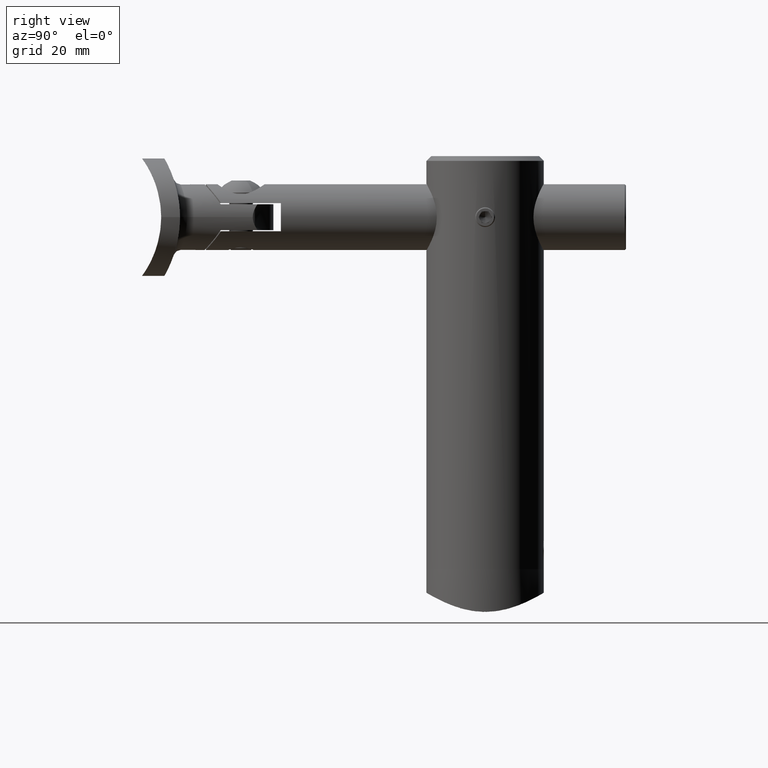
[diagram: clean part render]
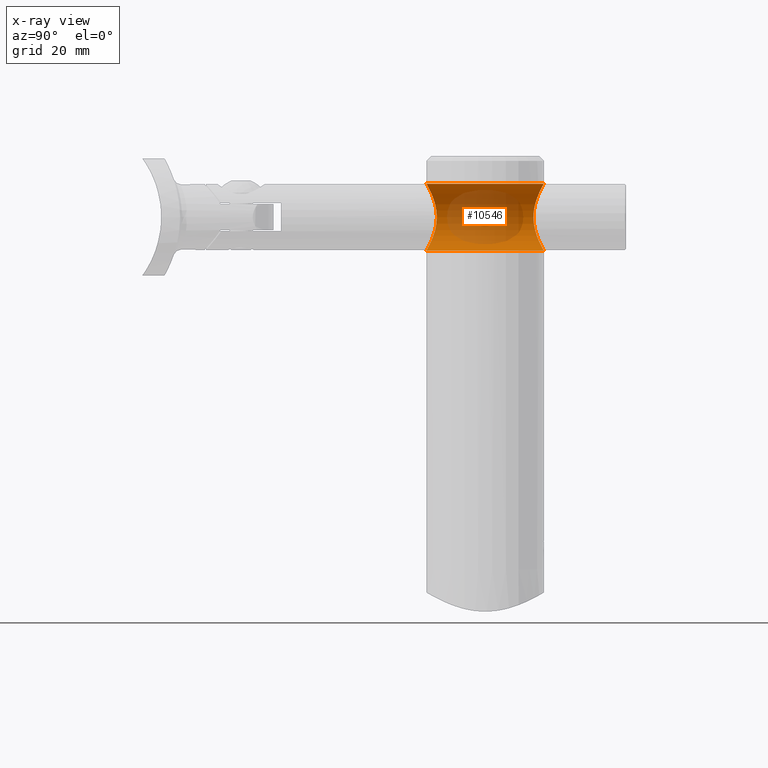
[diagram: x-ray — body ghosted, one internal face saturated and labeled with its STEP entity id]
A machine part, right view, then the same camera in x-ray: the body is ghosted and one INTERNAL B-rep face — a face not visible from any outside direction — is saturated and labeled: STEP entity #10546.
In plain terms, the highlighted cylindrical surface (edge-blend (fillet) strip) has radius 7.1 mm, axis along (0, 1, 0).
Its self-contained STEP definition (entity closure, byte-faithful):
#573 = CARTESIAN_POINT ( 'NONE',  ( -6.363243337331820904, 10.76119357562656376, 71.81699247692640142 ) ) ;
#711 = CARTESIAN_POINT ( 'NONE',  ( -7.003725121456042757, 10.35379304955138124, 73.81127548781321934 ) ) ;
#791 = CARTESIAN_POINT ( 'NONE',  ( -6.721338987096790341, 10.54124068422388660, 72.66633231102328239 ) ) ;
#935 = CARTESIAN_POINT ( 'NONE',  ( -3.597349250370595719, 11.97780161950913325, 81.13814261268854011 ) ) ;
#1596 = CARTESIAN_POINT ( 'NONE',  ( -5.766588826831744896, -11.09131400361185094, 79.14830821994482335 ) ) ;
#1783 = DIRECTION ( 'NONE',  ( -0.000000000000000000, 1.000000000000000000, -0.000000000000000000 ) ) ;
#1882 = CARTESIAN_POINT ( 'NONE',  ( -7.099863319915299620, -10.28795124725936816, 75.48272081303903747 ) ) ;
#2025 = CARTESIAN_POINT ( 'NONE',  ( -1.869096526884923559, -12.36157828789707835, 68.14638903365944600 ) ) ;
#2096 = CARTESIAN_POINT ( 'NONE',  ( -5.633085906007541332, -11.16254692090160461, 70.65396086375709217 ) ) ;
#2167 = CARTESIAN_POINT ( 'NONE',  ( -0.4799539051028682834, 12.49999999999999822, 67.90000000000000568 ) ) ;
#2237 = CARTESIAN_POINT ( 'NONE',  ( -7.087426699821466336, 10.29656404782429746, 74.51571112368853278 ) ) ;
#2311 = CARTESIAN_POINT ( 'NONE',  ( -6.715641276056542708, 10.54309940824726688, 77.31630617827102014 ) ) ;
#2382 = CARTESIAN_POINT ( 'NONE',  ( -6.019886174600849849, 10.95590503741819077, 78.77136084374127734 ) ) ;
#2456 = CARTESIAN_POINT ( 'NONE',  ( -4.699254457469035806, 11.58459427111668205, 80.32723125532280051 ) ) ;
#2562 = VERTEX_POINT ( 'NONE', #8937 ) ;
#2610 = CARTESIAN_POINT ( 'NONE',  ( -0.4811991486314993738, 12.49299174562365344, 82.08768211575331009 ) ) ;
#2753 = CARTESIAN_POINT ( 'NONE',  ( 1.310074275435993587E-16, 12.49999999999999467, 82.09999999999999432 ) ) ;
#3323 = CARTESIAN_POINT ( 'NONE',  ( -7.100136108486188924, -10.28776298659892596, 74.52130825598261765 ) ) ;
#3402 = CARTESIAN_POINT ( 'NONE',  ( -6.136548808116675247, -10.89076193942645965, 71.42150636865642355 ) ) ;
#3698 = CARTESIAN_POINT ( 'NONE',  ( -0.4809610958689493065, -12.50000000000000711, 67.89999999999999147 ) ) ;
#3750 = EDGE_LOOP ( 'NONE', ( #4633, #15842, #19858, #14291 ) ) ;
#3829 = CARTESIAN_POINT ( 'NONE',  ( 1.530808498934021719E-15, -12.50000000000000711, 67.90000000000000568 ) ) ;
#3971 = CARTESIAN_POINT ( 'NONE',  ( -6.457309689604062264, 10.70346527864367481, 77.96083301754556771 ) ) ;
#4003 = DIRECTION ( 'NONE',  ( -0.000000000000000000, 1.000000000000000000, -0.000000000000000000 ) ) ;
#4186 = CARTESIAN_POINT ( 'NONE',  ( -0.2397798003476031004, 12.50000000000000000, 82.10000000000002274 ) ) ;
#4256 = CARTESIAN_POINT ( 'NONE',  ( -2.327268730588588852, 12.28355408712934960, 81.71186112651896849 ) ) ;
#4319 = CARTESIAN_POINT ( 'NONE',  ( -1.878213508060260439, 12.36018587133492552, 81.85110017035161434 ) ) ;
#4633 = ORIENTED_EDGE ( 'NONE', *, *, #14865, .T. ) ;
#4852 = CARTESIAN_POINT ( 'NONE',  ( 1.290313625304569330E-16, -12.50000000000000888, 82.09999999999999432 ) ) ;
#4854 = CYLINDRICAL_SURFACE ( 'NONE', #14720, 7.099999999999995204 ) ;
#5236 = CARTESIAN_POINT ( 'NONE',  ( -2.319323625872138361, -12.28506725716603754, 68.28537096905358794 ) ) ;
#5510 = CARTESIAN_POINT ( 'NONE',  ( -3.186329035902472295, -12.09508519001900240, 68.63805128578243853 ) ) ;
#5653 = CARTESIAN_POINT ( 'NONE',  ( -3.187016512190915307, 12.09486426576824591, 68.63847765149670010 ) ) ;
#5727 = CARTESIAN_POINT ( 'NONE',  ( -6.853982002503376414, 10.45369377733144312, 76.86763025503729807 ) ) ;
#5800 = CARTESIAN_POINT ( 'NONE',  ( -0.9553685758214900403, 12.46569958972207814, 82.03946455910859470 ) ) ;
#6521 = CARTESIAN_POINT ( 'NONE',  ( -0.9512168273055808809, -12.47240342699864257, 82.05172804908774253 ) ) ;
#6590 = CARTESIAN_POINT ( 'NONE',  ( -0.4805659640073332572, -12.50000000000001066, 82.09999999999999432 ) ) ;
#6664 = CARTESIAN_POINT ( 'NONE',  ( -3.592029824636711055, -11.97955674781281488, 81.14166018535316027 ) ) ;
#6709 = CARTESIAN_POINT ( 'NONE',  ( 0.000000000000000000, -12.50000000000000888, 82.09999999999999432 ) ) ;
#6733 = CARTESIAN_POINT ( 'NONE',  ( -3.187496164584713743, -12.09474588327909572, 81.36129952231799223 ) ) ;
#6931 = DIRECTION ( 'NONE',  ( -0.000000000000000000, 1.000000000000000000, -0.000000000000000000 ) ) ;
#7149 = CARTESIAN_POINT ( 'NONE',  ( -4.357488413051599174, 11.72285358696203161, 69.37543835206956544 ) ) ;
#7285 = CARTESIAN_POINT ( 'NONE',  ( -5.765905370694645704, 11.09166530797232397, 70.85077256676534319 ) ) ;
#8150 = CARTESIAN_POINT ( 'NONE',  ( -6.863499158220037089, -10.44773442666880925, 76.87726417523569467 ) ) ;
#8222 = CARTESIAN_POINT ( 'NONE',  ( -5.629205280336354811, -11.16189758074911786, 79.33288889108357012 ) ) ;
#8289 = CARTESIAN_POINT ( 'NONE',  ( -6.713868405384194382, -10.54423150536104181, 72.67849907081439653 ) ) ;
#8354 = CARTESIAN_POINT ( 'NONE',  ( -6.148078400945676592, -10.88734605281070422, 78.58038588945871084 ) ) ;
#8570 = CARTESIAN_POINT ( 'NONE',  ( -5.345048310374298950, -11.30501070537479791, 70.30460859623606495 ) ) ;
#8710 = CARTESIAN_POINT ( 'NONE',  ( -4.707102817139632300, 11.58512768093194367, 69.66537265374722665 ) ) ;
#8739 = CARTESIAN_POINT ( 'NONE',  ( 0.000000000000000000, -12.50000000000000888, 75.00000000000000000 ) ) ;
#8771 = CARTESIAN_POINT ( 'NONE',  ( -7.099833554373474520, 10.28797178943786861, 74.75572396004346842 ) ) ;
#8853 = CARTESIAN_POINT ( 'NONE',  ( 1.479114197289397135E-28, 12.49999999999999645, 67.90000000000000568 ) ) ;
#8937 = CARTESIAN_POINT ( 'NONE',  ( 1.310074275435993587E-16, 12.49999999999999467, 82.09999999999999432 ) ) ;
#9212 = EDGE_CURVE ( 'NONE', #13586, #11777, #10848, .T. ) ;
#9220 = CARTESIAN_POINT ( 'NONE',  ( -4.163804789402314910, 11.78780696279484275, 80.75540257205885553 ) ) ;
#9802 = CARTESIAN_POINT ( 'NONE',  ( -7.051980222211305716, -10.32144769786894756, 74.05050001367733614 ) ) ;
#9865 = CARTESIAN_POINT ( 'NONE',  ( -6.454712516760552354, -10.70503448327142237, 72.03349485711554223 ) ) ;
#9938 = CARTESIAN_POINT ( 'NONE',  ( -6.016811922509472055, -10.95760019053422774, 71.22370518382081173 ) ) ;
#10150 = CARTESIAN_POINT ( 'NONE',  ( -4.703273353215213781, -11.58671775153815986, 69.66188594729268857 ) ) ;
#10196 = FACE_OUTER_BOUND ( 'NONE', #3750, .T. ) ;
#10354 = CARTESIAN_POINT ( 'NONE',  ( -6.146595381488635823, 10.88816703618159565, 71.41721095202193226 ) ) ;
#10421 = CARTESIAN_POINT ( 'NONE',  ( -6.912668111617620070, 10.41480574227798783, 76.63725143042475452 ) ) ;
#10426 = LINE ( 'NONE', #6709, #19049 ) ;
#10494 = CARTESIAN_POINT ( 'NONE',  ( -5.339170464550233142, 11.30350596078846870, 70.31435362947014767 ) ) ;
#10546 = ADVANCED_FACE ( 'NONE', ( #10196 ), #4854, .F. ) ;
#10561 = CARTESIAN_POINT ( 'NONE',  ( -6.357972462635662403, 10.76299649604914954, 78.16845701976458827 ) ) ;
#10848 = LINE ( 'NONE', #18336, #17437 ) ;
#11493 = CARTESIAN_POINT ( 'NONE',  ( -6.634052515645173287, -10.59483006856256537, 72.45976110248518864 ) ) ;
#11777 = VERTEX_POINT ( 'NONE', #21030 ) ;
#11993 = CARTESIAN_POINT ( 'NONE',  ( -7.039363743819929020, 10.32948239257338408, 74.04422229401671984 ) ) ;
#12054 = EDGE_CURVE ( 'NONE', #17315, #2562, #10426, .T. ) ;
#12133 = CARTESIAN_POINT ( 'NONE',  ( -7.052734923715453519, 10.32092856185195195, 75.94404489671643432 ) ) ;
#12171 = DIRECTION ( 'NONE',  ( 0.000000000000000000, 0.000000000000000000, 1.000000000000000000 ) ) ;
#12206 = CARTESIAN_POINT ( 'NONE',  ( -4.868944799639089993, 11.51408151635097887, 80.17252493070223807 ) ) ;
#13073 = CARTESIAN_POINT ( 'NONE',  ( -5.187679897919512229, -11.37402628047062514, 79.85275722496859885 ) ) ;
#13131 = CARTESIAN_POINT ( 'NONE',  ( -6.355184909898128787, -10.76464359171548146, 71.82596901323131533 ) ) ;
#13345 = CARTESIAN_POINT ( 'NONE',  ( -1.641484044854728097, -12.39391654726005321, 68.08836762162168554 ) ) ;
#13416 = CARTESIAN_POINT ( 'NONE',  ( -3.589032839019618670, -11.98032867455220796, 68.85692947369597050 ) ) ;
#13549 = CARTESIAN_POINT ( 'NONE',  ( -4.346314444032338464, -11.72684879340800812, 69.36723664936094735 ) ) ;
#13586 = VERTEX_POINT ( 'NONE', #19156 ) ;
#13689 = CARTESIAN_POINT ( 'NONE',  ( -6.636142668883750595, 10.59351820108907916, 77.53475660832805261 ) ) ;
#13758 = CARTESIAN_POINT ( 'NONE',  ( -5.186797260141185362, 11.37442896416548521, 70.14630031359379814 ) ) ;
#13829 = CARTESIAN_POINT ( 'NONE',  ( -4.346392963122591269, 11.72154789661119878, 80.61883026206068337 ) ) ;
#14120 = CARTESIAN_POINT ( 'NONE',  ( -3.195008394635605598, 12.09282248704221097, 81.35766473062257376 ) ) ;
#14291 = ORIENTED_EDGE ( 'NONE', *, *, #12054, .F. ) ;
#14682 = CARTESIAN_POINT ( 'NONE',  ( -5.339918604441927563, -11.30314907400740942, 79.68477827955356929 ) ) ;
#14720 = AXIS2_PLACEMENT_3D ( 'NONE', #8739, #4003, #12171 ) ;
#14817 = CARTESIAN_POINT ( 'NONE',  ( -4.708029709747248326, -11.58475042720365344, 80.33381269667304991 ) ) ;
#14865 = EDGE_CURVE ( 'NONE', #17315, #13586, #20113, .T. ) ;
#15162 = CARTESIAN_POINT ( 'NONE',  ( -2.330455522349846653, 12.28868556496928122, 68.27727600612421099 ) ) ;
#15304 = CARTESIAN_POINT ( 'NONE',  ( -6.139503581357961259, 10.88909560909868901, 78.57343385222416998 ) ) ;
#15383 = CARTESIAN_POINT ( 'NONE',  ( -5.637531711305973303, 11.16027666235574323, 79.34016184945231487 ) ) ;
#15598 = CARTESIAN_POINT ( 'NONE',  ( -1.189197617727922651, 12.44547036346077462, 82.00366006475732661 ) ) ;
#15672 = CARTESIAN_POINT ( 'NONE',  ( -1.650620416519912759, 12.39271462522872191, 81.90947881661521990 ) ) ;
#15842 = ORIENTED_EDGE ( 'NONE', *, *, #9212, .T. ) ;
#16313 = CARTESIAN_POINT ( 'NONE',  ( -6.722015453373487937, -10.54080125387374345, 77.33161824979872279 ) ) ;
#16376 = CARTESIAN_POINT ( 'NONE',  ( -4.356324323330959203, -11.72326304938613184, 80.62539833997443850 ) ) ;
#16450 = CARTESIAN_POINT ( 'NONE',  ( -7.051303418075907992, -10.32191336193628217, 75.95439068768591540 ) ) ;
#16727 = CARTESIAN_POINT ( 'NONE',  ( -0.9511355239451600996, -12.47236506100288445, 67.94834280267892268 ) ) ;
#16794 = CARTESIAN_POINT ( 'NONE',  ( -3.591928364928691053, 11.97960984808971929, 68.85822097251376306 ) ) ;
#16867 = CARTESIAN_POINT ( 'NONE',  ( -1.874312031601152784, 12.36740688548126954, 68.13568800573901285 ) ) ;
#16869 = CARTESIAN_POINT ( 'NONE',  ( -2.542285523396217606, -12.24072011514205194, 68.36667086906035706 ) ) ;
#17315 = VERTEX_POINT ( 'NONE', #4852 ) ;
#17437 = VECTOR ( 'NONE', #6931, 1000.000000000000000 ) ;
#17866 = CARTESIAN_POINT ( 'NONE',  ( -6.364631587517303402, -10.76036465851576907, 78.18015725607450861 ) ) ;
#17931 = CARTESIAN_POINT ( 'NONE',  ( -6.911509236011332824, -10.41557569167955855, 73.35788736678888711 ) ) ;
#18000 = CARTESIAN_POINT ( 'NONE',  ( -2.330508779459667501, -12.28868335539655376, 81.72272208563961726 ) ) ;
#18074 = CARTESIAN_POINT ( 'NONE',  ( -1.874052461373487910, -12.36744064349519334, 81.86437246242218180 ) ) ;
#18336 = CARTESIAN_POINT ( 'NONE',  ( 8.694992273946205774E-16, -12.50000000000000888, 67.90000000000000568 ) ) ;
#18483 = CARTESIAN_POINT ( 'NONE',  ( -6.862816372559787936, 10.44818337300496047, 73.12045813888649093 ) ) ;
#19049 = VECTOR ( 'NONE', #1783, 1000.000000000000000 ) ;
#19156 = CARTESIAN_POINT ( 'NONE',  ( 1.530808498934021719E-15, -12.50000000000000711, 67.90000000000000568 ) ) ;
#19565 = CARTESIAN_POINT ( 'NONE',  ( -6.852873825890776871, -10.45442333798883183, 73.12823189057863260 ) ) ;
#19858 = ORIENTED_EDGE ( 'NONE', *, *, #19896, .T. ) ;
#19896 = EDGE_CURVE ( 'NONE', #11777, #2562, #20400, .T. ) ;
#20052 = CARTESIAN_POINT ( 'NONE',  ( -5.628902018887846026, 11.16205403663977691, 70.66670042335572077 ) ) ;
#20113 = B_SPLINE_CURVE_WITH_KNOTS ( 'NONE', 3,
 ( #20856, #6590, #6521, #18074, #18000, #6733, #6664, #16376, #14817, #13073, #14682, #8222, #1596, #8354, #17866, #16313, #8150, #16450, #1882, #3323, #9802, #17931, #19565, #8289, #11493, #9865, #13131, #3402, #9938, #2096, #8570, #10150, #13549, #13416, #5510, #16869, #5236, #2025, #13345, #16727, #3698, #3829 ),
 .UNSPECIFIED., .F., .F.,
 ( 4, 2, 2, 2, 2, 2, 2, 2, 2, 2, 2, 2, 2, 2, 2, 2, 2, 2, 2, 2, 4 ),
 ( 1.250545881557408011E-19, 0.001419307301426417974, 0.002838614602852835515, 0.004257921904279252621, 0.005677229205705669295, 0.006386882856418878499, 0.007096536507132086835, 0.008515843808558505243, 0.009935151109984921916, 0.01135445841141133859, 0.01277376571283775873, 0.01348341936355096707, 0.01419307301426417714, 0.01490272666497738548, 0.01561238031569059381, 0.01703168761711697926, 0.01845099491854336471, 0.01987030221996975016, 0.02057995587068294288, 0.02128960952139613561, 0.02270891682282252105 ),
 .UNSPECIFIED. ) ;
#20129 = CARTESIAN_POINT ( 'NONE',  ( -7.100327846217661332, 10.28763066194222553, 75.47389198161975798 ) ) ;
#20197 = CARTESIAN_POINT ( 'NONE',  ( -0.9511822130778539996, 12.47241159761730600, 67.94825715557604440 ) ) ;
#20271 = CARTESIAN_POINT ( 'NONE',  ( -5.350137245759822413, 11.30260226496380405, 79.68962492468297398 ) ) ;
#20338 = CARTESIAN_POINT ( 'NONE',  ( -2.549971958430652386, 12.23912789366316645, 81.63039500168852669 ) ) ;
#20400 = B_SPLINE_CURVE_WITH_KNOTS ( 'NONE', 3,
 ( #8853, #2167, #20197, #16867, #15162, #5653, #16794, #7149, #8710, #13758, #10494, #20052, #7285, #10354, #573, #791, #18483, #711, #11993, #2237, #8771, #20129, #12133, #10421, #5727, #2311, #13689, #3971, #10561, #15304, #2382, #15383, #20271, #12206, #2456, #13829, #9220, #935, #14120, #20338, #4256, #4319, #15672, #15598, #5800, #2610, #4186, #2753 ),
 .UNSPECIFIED., .F., .F.,
 ( 4, 2, 2, 2, 2, 2, 2, 2, 2, 2, 2, 2, 2, 2, 2, 2, 2, 2, 2, 2, 2, 2, 2, 4 ),
 ( 0.02270891682282252799, 0.02412525192292018852, 0.02554158702301784559, 0.02695792212311550612, 0.02837425722321316318, 0.02908242477326199171, 0.02979059232331082024, 0.03120692742340847731, 0.03262326252350612743, 0.03333143007355495596, 0.03403959762360378449, 0.03545593272370139992, 0.03616410027375020764, 0.03687226782379901535, 0.03758043537384781613, 0.03828860292389662384, 0.03970493802399420458, 0.04041310557404299841, 0.04112127312409179225, 0.04253760822418940074, 0.04324577577423820152, 0.04395394332428700923, 0.04466211087433581695, 0.04537027842438461772 ),
 .UNSPECIFIED. ) ;
#20856 = CARTESIAN_POINT ( 'NONE',  ( 1.290313625304569330E-16, -12.50000000000000888, 82.09999999999999432 ) ) ;
#21030 = CARTESIAN_POINT ( 'NONE',  ( 1.479114197289397135E-28, 12.49999999999999645, 67.90000000000000568 ) ) ;